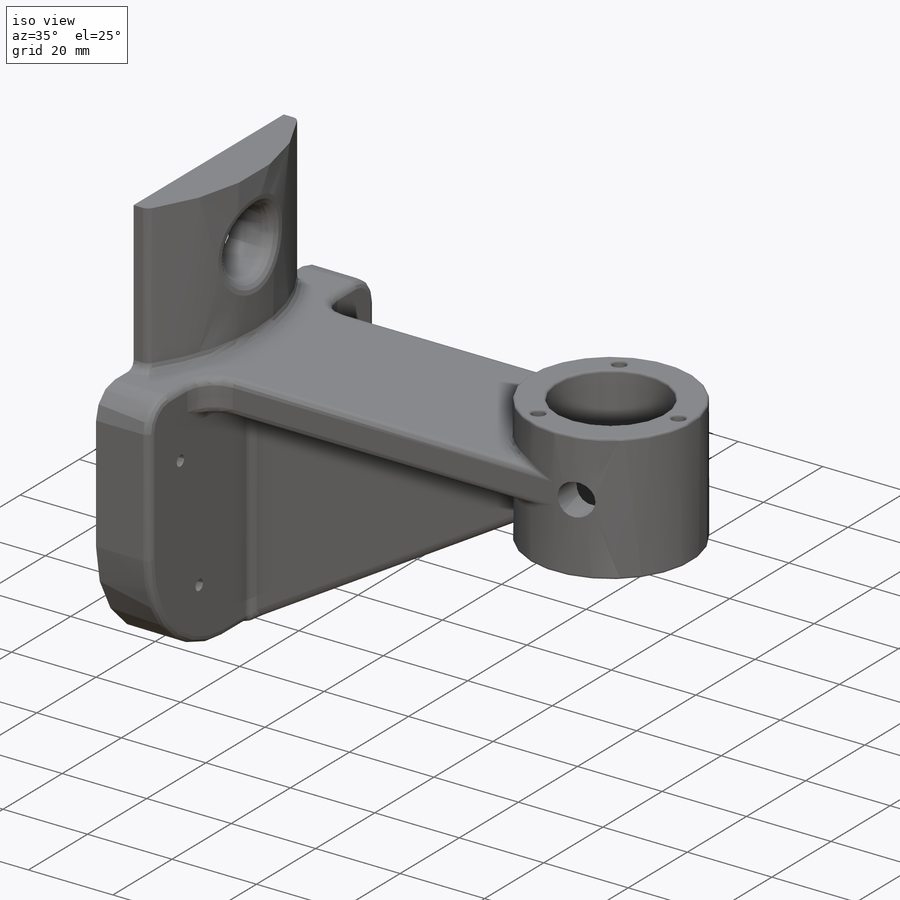
[diagram: iso view]
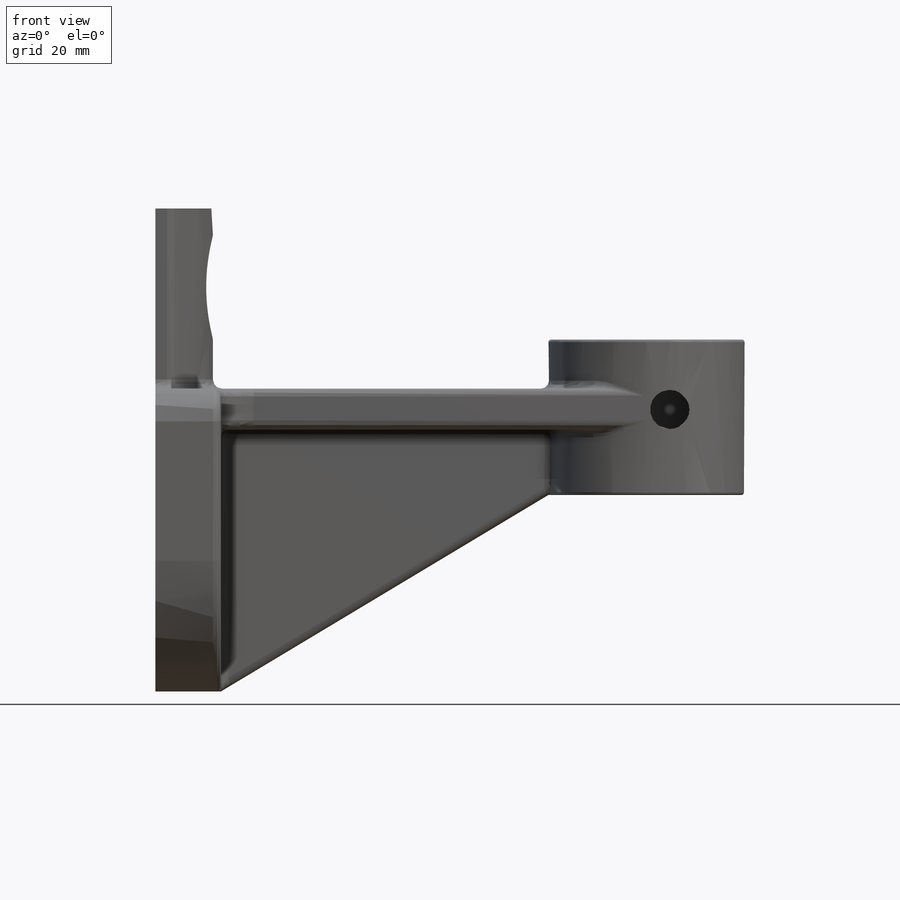
[diagram: front view]
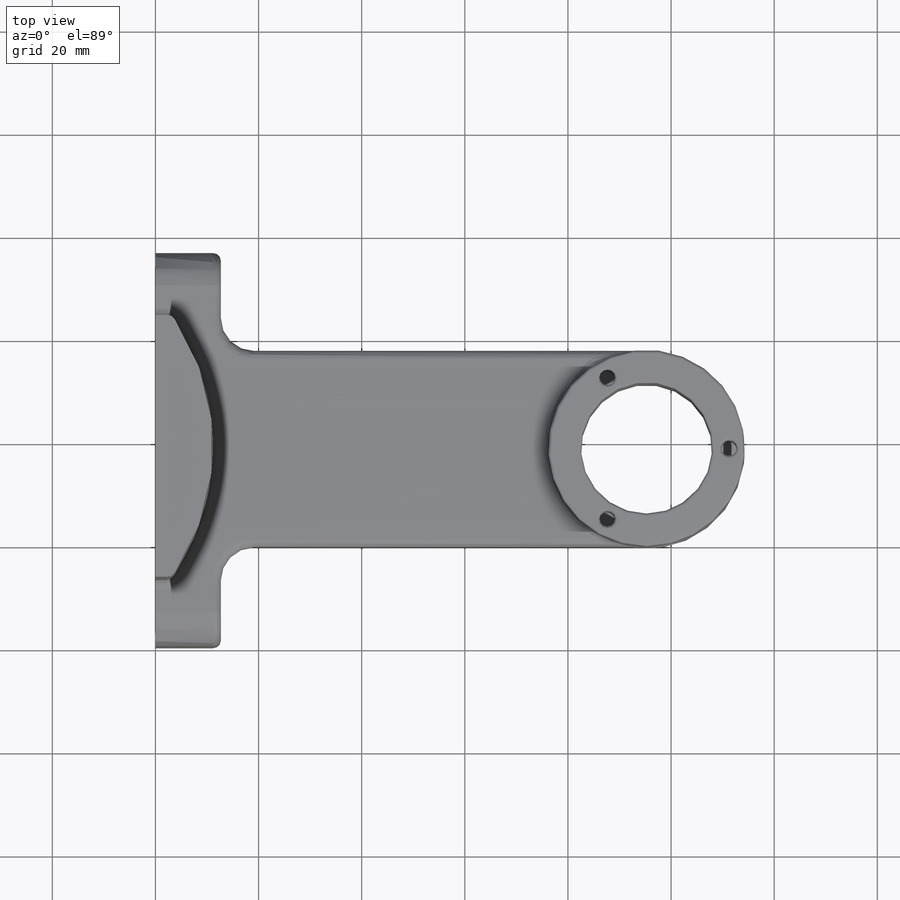
[diagram: top view]
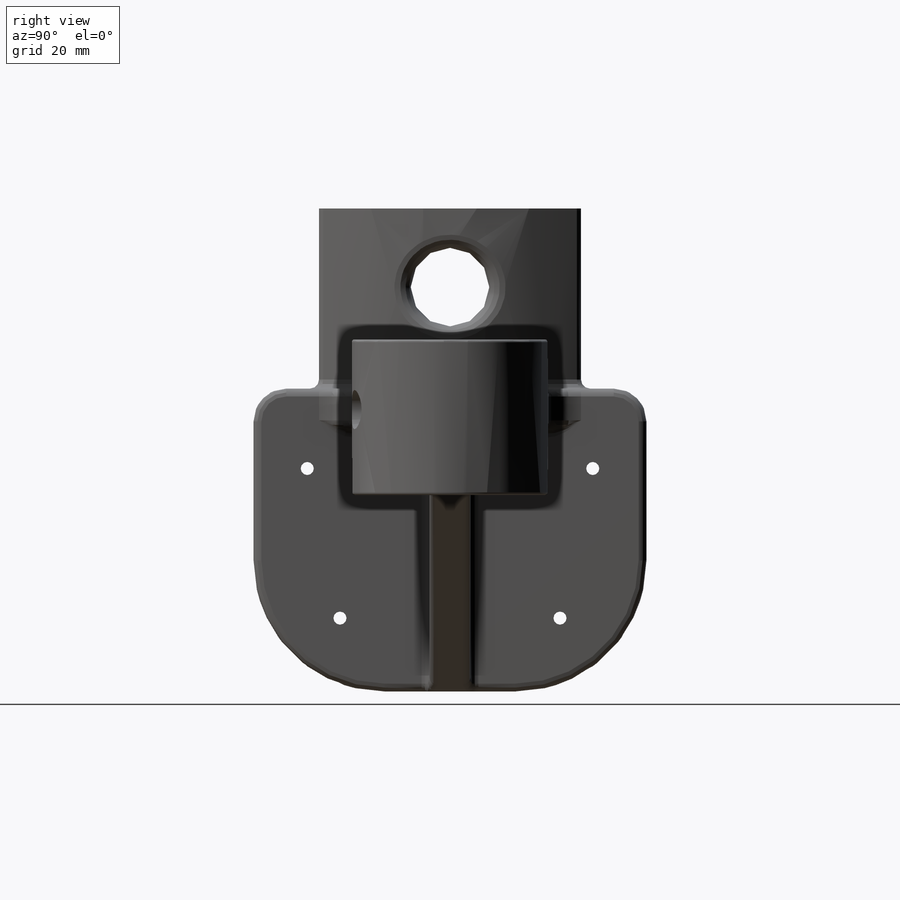
[diagram: right view]
SOLIDWORKS PART (.sldprt)
format: sldprt  version: not decoded by parser v0  size: 643,584 bytes
history: native  units: mm
features: sketch x17, fillet x10, hole x9, extrude x5, plane x2, material x1 (+14 scaffold rows collapsed)
feature tree (58):
  scaffold x14  (default folders/planes/origin — collapsed)
  material  "Material <not specified>"
  sketch  "Sketch1"  dims[D1=76.2mm D2=58.7375mm]
  extrude  "Base-Extrude"  Depth=12.7mm
  sketch  "Sketch2"  dims[D1=7.9375mm D2=38.1mm]
  extrude  "Boss-Extrude3"  Depth=95.25mm
  plane  "Plane4"  Offset=9.525mm
  sketch  "Sketch4"
  extrude  "Boss-Extrude4"  Depth=30.1625mm
  sketch  "Sketch5"  dims[D3=44.45mm D1=50.8mm D2=3.175mm]
  extrude  "Boss-Extrude5"  Depth=34.925mm
  sketch  "Sketch6"
  sketch  "Sketch7"
  plane  "Plane5"
  sketch  "Sketch8"
  extrude  "Boss-Extrude7"  Depth=7.9375mm
  fillet  "Fillet1"  Radius=6.35mm
  fillet  "Fillet2"  Radius=25.4mm
  fillet  "Fillet4"  Radius=1.778mm
  fillet  "Fillet5"  Radius=1.524mm
  fillet  "Fillet6"  Radius=1.524mm
  fillet  "Fillet7"  Radius=1.524mm
  fillet  "Fillet10"  Radius=1.524mm
  fillet  "Fillet11"  Radius=1.524mm
  sketch  "Sketch10"  dims[c1.D1=12.7mm c1.D2=2.54mm c1.D3=12.7mm c2.D1=~20.656754mm c2.D3=8.89mm c3.D1=13.97mm]
  hole  "Hole2"  [1 undecoded]
  sketch  "Sketch11"  dims[c1.D1=2.54mm c1.D2=12.7mm c1.D3=12.7mm c2.D2=8.89mm c2.D3=13.97mm]
  hole  "Hole3"  [1 undecoded]
  sketch  "Sketch12"  dims[c1.D1=2.54mm c1.D2=11.43mm c1.D3=11.43mm c2.D2=15.24mm c2.D3=12.7mm]
  hole  "Hole4"  [1 undecoded]
  sketch  "Sketch13"  dims[c1.D1=2.54mm c1.D2=10.16mm c1.D3=10.16mm c2.D2=12.7mm c2.D3=15.24mm c2.D4=12.7mm c3.D2=12.7mm]
  hole  "Hole5"  [1 undecoded]
  sketch  "Sketch14"  dims[D1=25.4mm]
  hole  "Hole6"  [1 undecoded]
  sketch  "Sketch15"  dims[c1.D1=15.24mm c1.D2=20.32mm c1.D3=20.32mm c2.D2=25.4mm c2.D3=15.24mm]
  hole  "Hole9"  [1 undecoded]
  sketch  "Sketch17"  dims[c1.D1=7.62mm c1.D2=5.08mm c1.D3=5.08mm c2.D2=2.54mm c2.D3=22.86mm c2.D1=25.4mm]
  hole  "Hole10"  [1 undecoded]
  sketch  "Sketch18"  dims[c1.D1=3.81mm c1.D2=3.81mm c1.D3=3.81mm c1.D4=3.81mm c2.D1=3.048mm c2.D2=3.81mm c2.D3=3.81mm c3.D2=~14.297619mm c3.D3=~7.763748mm c4.D2=13.716mm c4.D3=7.62mm c4.D1=10.16mm]
  hole  "Hole11"  [1 undecoded]
  sketch  "Sketch19"  dims[c1.D1=3.048mm c1.D2=3.81mm c1.D3=3.81mm c2.D2=13.716mm c2.D3=7.62mm c2.D1=10.16mm]
  hole  "Hole13"  [1 undecoded]
  sketch  "Sketch21"  dims[c1.D1=3.048mm c2.D1=10.16mm]
  fillet  "Fillet12"  Radius=0.508mm
  fillet  "Filletonhole"  Radius=2.54mm
decode coverage: 28 of 41 modeling features carry decoded parameters
note: ~ marks probable driven/reference dimensions
note: 9 parameter values undecoded
summary: no parameter record found for 9 features | [note 3] (x9 features) parser:v0:name_prior (class ref resolved by constrained assignment + name prior)
note: suppression state not decoded; provenance and decode notes live in map.json
